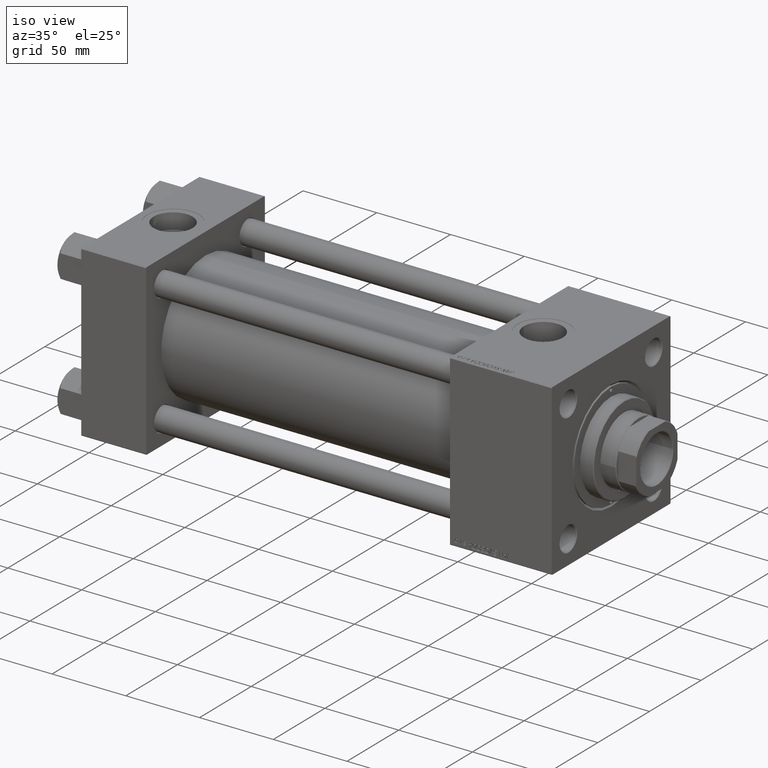
[diagram: clean part render]
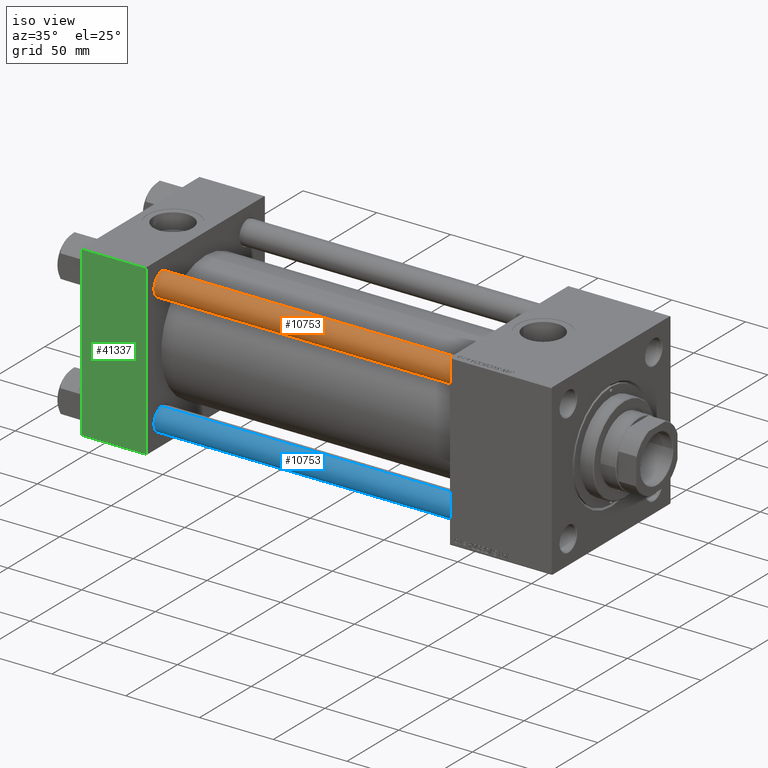
[diagram: same view with three faces highlighted in distinct colors, each labeled with its STEP entity id]
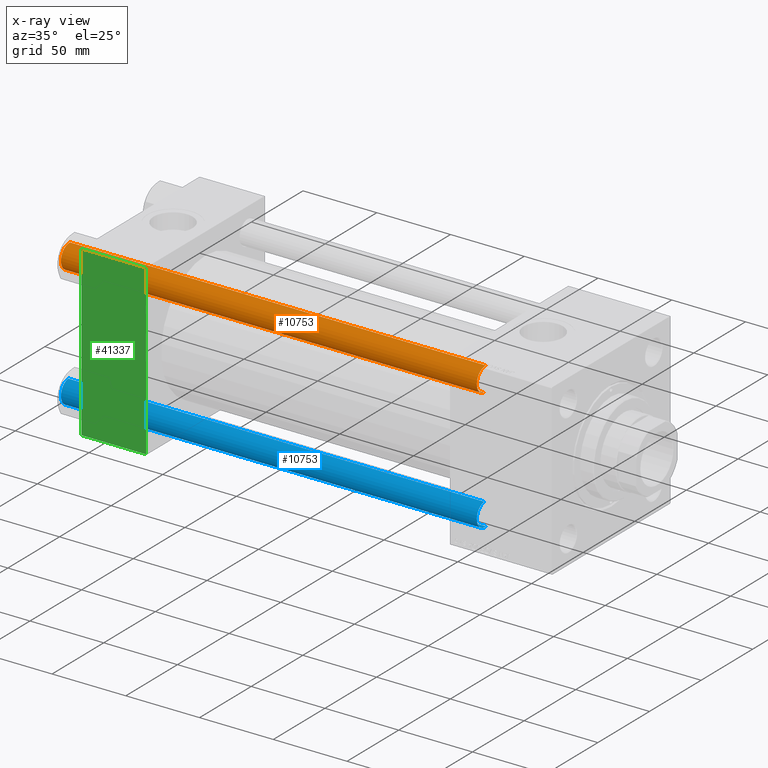
[diagram: x-ray of the same camera — body ghosted, the three highlighted faces saturated]
A machine part, iso view with three faces highlighted in distinct colors.
The next image is the same camera in x-ray (body ghosted, the three faces saturated) — at least one of them is partly hidden behind the body in this view.
Their STEP definitions:

[orange] entity #10753 — the highlighted cylindrical surface (edge-blend (fillet) strip) has radius 8 mm, axis along (1, 0, -0).
#564 = CARTESIAN_POINT ( 'NONE',  ( 8.000000000000000000, 9.797174393178825657E-16, 0.5000000000000004441 ) ) ;
#906 = LINE ( 'NONE', #26041, #34677 ) ;
#1818 = CARTESIAN_POINT ( 'NONE',  ( 0.000000000000000000, 0.000000000000000000, 0.5000000000000004441 ) ) ;
#4916 = CARTESIAN_POINT ( 'NONE',  ( -8.000000000000000000, 0.000000000000000000, 282.5000000000000000 ) ) ;
#5193 = DIRECTION ( 'NONE',  ( -0.000000000000000000, -0.000000000000000000, -1.000000000000000000 ) ) ;
#8418 = AXIS2_PLACEMENT_3D ( 'NONE', #21054, #8491, #41111 ) ;
#8491 = DIRECTION ( 'NONE',  ( 0.000000000000000000, 0.000000000000000000, -1.000000000000000000 ) ) ;
#10204 = DIRECTION ( 'NONE',  ( -0.000000000000000000, -0.000000000000000000, -1.000000000000000000 ) ) ;
#10720 = LINE ( 'NONE', #46843, #48256 ) ;
#10753 = ADVANCED_FACE ( 'NONE', ( #36509 ), #48542, .T. ) ;
#10819 = CIRCLE ( 'NONE', #47546, 8.000000000000000000 ) ;
#12164 = CARTESIAN_POINT ( 'NONE',  ( 0.000000000000000000, 0.000000000000000000, 283.0000000000000000 ) ) ;
#13083 = ORIENTED_EDGE ( 'NONE', *, *, #45338, .F. ) ;
#14414 = VERTEX_POINT ( 'NONE', #42845 ) ;
#15616 = DIRECTION ( 'NONE',  ( -0.000000000000000000, -0.000000000000000000, 1.000000000000000000 ) ) ;
#17550 = EDGE_CURVE ( 'NONE', #14414, #34293, #906, .T. ) ;
#21054 = CARTESIAN_POINT ( 'NONE',  ( 0.000000000000000000, 0.000000000000000000, 282.5000000000000000 ) ) ;
#25199 = ORIENTED_EDGE ( 'NONE', *, *, #51605, .T. ) ;
#25695 = ORIENTED_EDGE ( 'NONE', *, *, #26757, .T. ) ;
#26041 = CARTESIAN_POINT ( 'NONE',  ( 8.000000000000000000, 9.797174393178825657E-16, 283.0000000000000000 ) ) ;
#26757 = EDGE_CURVE ( 'NONE', #34015, #14414, #28031, .T. ) ;
#27175 = EDGE_LOOP ( 'NONE', ( #25695, #48696, #25199, #13083 ) ) ;
#28031 = CIRCLE ( 'NONE', #8418, 8.000000000000000000 ) ;
#28205 = DIRECTION ( 'NONE',  ( -1.000000000000000000, 0.000000000000000000, 0.000000000000000000 ) ) ;
#30644 = CARTESIAN_POINT ( 'NONE',  ( -8.000000000000000000, 0.000000000000000000, 0.5000000000000004441 ) ) ;
#34015 = VERTEX_POINT ( 'NONE', #4916 ) ;
#34293 = VERTEX_POINT ( 'NONE', #564 ) ;
#34677 = VECTOR ( 'NONE', #5193, 1000.000000000000000 ) ;
#36509 = FACE_OUTER_BOUND ( 'NONE', #27175, .T. ) ;
#41111 = DIRECTION ( 'NONE',  ( 1.000000000000000000, 0.000000000000000000, 0.000000000000000000 ) ) ;
#42246 = AXIS2_PLACEMENT_3D ( 'NONE', #12164, #52816, #28205 ) ;
#42845 = CARTESIAN_POINT ( 'NONE',  ( 8.000000000000000000, 9.797174393178825657E-16, 282.5000000000000000 ) ) ;
#45338 = EDGE_CURVE ( 'NONE', #34015, #52841, #10720, .T. ) ;
#46843 = CARTESIAN_POINT ( 'NONE',  ( -8.000000000000000000, 0.000000000000000000, 283.0000000000000000 ) ) ;
#47546 = AXIS2_PLACEMENT_3D ( 'NONE', #1818, #15616, #52514 ) ;
#48256 = VECTOR ( 'NONE', #10204, 1000.000000000000000 ) ;
#48542 = CYLINDRICAL_SURFACE ( 'NONE', #42246, 8.000000000000000000 ) ;
#48696 = ORIENTED_EDGE ( 'NONE', *, *, #17550, .T. ) ;
#51605 = EDGE_CURVE ( 'NONE', #34293, #52841, #10819, .T. ) ;
#52514 = DIRECTION ( 'NONE',  ( 1.000000000000000000, 0.000000000000000000, 0.000000000000000000 ) ) ;
#52816 = DIRECTION ( 'NONE',  ( -0.000000000000000000, -0.000000000000000000, -1.000000000000000000 ) ) ;
#52841 = VERTEX_POINT ( 'NONE', #30644 ) ;

[blue] entity #10753 — the highlighted cylindrical surface (edge-blend (fillet) strip) has radius 8 mm, axis along (-1, -0, -0).
#564 = CARTESIAN_POINT ( 'NONE',  ( 8.000000000000000000, 9.797174393178825657E-16, 0.5000000000000004441 ) ) ;
#906 = LINE ( 'NONE', #26041, #34677 ) ;
#1818 = CARTESIAN_POINT ( 'NONE',  ( 0.000000000000000000, 0.000000000000000000, 0.5000000000000004441 ) ) ;
#4916 = CARTESIAN_POINT ( 'NONE',  ( -8.000000000000000000, 0.000000000000000000, 282.5000000000000000 ) ) ;
#5193 = DIRECTION ( 'NONE',  ( -0.000000000000000000, -0.000000000000000000, -1.000000000000000000 ) ) ;
#8418 = AXIS2_PLACEMENT_3D ( 'NONE', #21054, #8491, #41111 ) ;
#8491 = DIRECTION ( 'NONE',  ( 0.000000000000000000, 0.000000000000000000, -1.000000000000000000 ) ) ;
#10204 = DIRECTION ( 'NONE',  ( -0.000000000000000000, -0.000000000000000000, -1.000000000000000000 ) ) ;
#10720 = LINE ( 'NONE', #46843, #48256 ) ;
#10753 = ADVANCED_FACE ( 'NONE', ( #36509 ), #48542, .T. ) ;
#10819 = CIRCLE ( 'NONE', #47546, 8.000000000000000000 ) ;
#12164 = CARTESIAN_POINT ( 'NONE',  ( 0.000000000000000000, 0.000000000000000000, 283.0000000000000000 ) ) ;
#13083 = ORIENTED_EDGE ( 'NONE', *, *, #45338, .F. ) ;
#14414 = VERTEX_POINT ( 'NONE', #42845 ) ;
#15616 = DIRECTION ( 'NONE',  ( -0.000000000000000000, -0.000000000000000000, 1.000000000000000000 ) ) ;
#17550 = EDGE_CURVE ( 'NONE', #14414, #34293, #906, .T. ) ;
#21054 = CARTESIAN_POINT ( 'NONE',  ( 0.000000000000000000, 0.000000000000000000, 282.5000000000000000 ) ) ;
#25199 = ORIENTED_EDGE ( 'NONE', *, *, #51605, .T. ) ;
#25695 = ORIENTED_EDGE ( 'NONE', *, *, #26757, .T. ) ;
#26041 = CARTESIAN_POINT ( 'NONE',  ( 8.000000000000000000, 9.797174393178825657E-16, 283.0000000000000000 ) ) ;
#26757 = EDGE_CURVE ( 'NONE', #34015, #14414, #28031, .T. ) ;
#27175 = EDGE_LOOP ( 'NONE', ( #25695, #48696, #25199, #13083 ) ) ;
#28031 = CIRCLE ( 'NONE', #8418, 8.000000000000000000 ) ;
#28205 = DIRECTION ( 'NONE',  ( -1.000000000000000000, 0.000000000000000000, 0.000000000000000000 ) ) ;
#30644 = CARTESIAN_POINT ( 'NONE',  ( -8.000000000000000000, 0.000000000000000000, 0.5000000000000004441 ) ) ;
#34015 = VERTEX_POINT ( 'NONE', #4916 ) ;
#34293 = VERTEX_POINT ( 'NONE', #564 ) ;
#34677 = VECTOR ( 'NONE', #5193, 1000.000000000000000 ) ;
#36509 = FACE_OUTER_BOUND ( 'NONE', #27175, .T. ) ;
#41111 = DIRECTION ( 'NONE',  ( 1.000000000000000000, 0.000000000000000000, 0.000000000000000000 ) ) ;
#42246 = AXIS2_PLACEMENT_3D ( 'NONE', #12164, #52816, #28205 ) ;
#42845 = CARTESIAN_POINT ( 'NONE',  ( 8.000000000000000000, 9.797174393178825657E-16, 282.5000000000000000 ) ) ;
#45338 = EDGE_CURVE ( 'NONE', #34015, #52841, #10720, .T. ) ;
#46843 = CARTESIAN_POINT ( 'NONE',  ( -8.000000000000000000, 0.000000000000000000, 283.0000000000000000 ) ) ;
#47546 = AXIS2_PLACEMENT_3D ( 'NONE', #1818, #15616, #52514 ) ;
#48256 = VECTOR ( 'NONE', #10204, 1000.000000000000000 ) ;
#48542 = CYLINDRICAL_SURFACE ( 'NONE', #42246, 8.000000000000000000 ) ;
#48696 = ORIENTED_EDGE ( 'NONE', *, *, #17550, .T. ) ;
#51605 = EDGE_CURVE ( 'NONE', #34293, #52841, #10819, .T. ) ;
#52514 = DIRECTION ( 'NONE',  ( 1.000000000000000000, 0.000000000000000000, 0.000000000000000000 ) ) ;
#52816 = DIRECTION ( 'NONE',  ( -0.000000000000000000, -0.000000000000000000, -1.000000000000000000 ) ) ;
#52841 = VERTEX_POINT ( 'NONE', #30644 ) ;

[green] entity #41337 — the highlighted planar face has unit normal (0, 1, 0).
#1961 = ORIENTED_EDGE ( 'NONE', *, *, #20192, .F. ) ;
#2152 = CARTESIAN_POINT ( 'NONE',  ( 44.00000000000000000, -57.50000000000000711, 57.00000000000000711 ) ) ;
#3645 = CARTESIAN_POINT ( 'NONE',  ( 0.000000000000000000, -57.50000000000000711, 57.00000000000000711 ) ) ;
#4051 = ORIENTED_EDGE ( 'NONE', *, *, #16011, .T. ) ;
#4218 = DIRECTION ( 'NONE',  ( -0.000000000000000000, 1.000000000000000000, 0.000000000000000000 ) ) ;
#4444 = DIRECTION ( 'NONE',  ( 0.000000000000000000, 0.000000000000000000, -1.000000000000000000 ) ) ;
#7175 = EDGE_LOOP ( 'NONE', ( #4051, #17440, #1961, #14081 ) ) ;
#7976 = DIRECTION ( 'NONE',  ( 0.000000000000000000, -0.000000000000000000, 1.000000000000000000 ) ) ;
#10949 = CARTESIAN_POINT ( 'NONE',  ( 44.00000000000000000, -57.50000000000000711, -57.00000000000000711 ) ) ;
#11691 = CARTESIAN_POINT ( 'NONE',  ( 0.000000000000000000, -57.50000000000000711, 57.49999999999999289 ) ) ;
#14081 = ORIENTED_EDGE ( 'NONE', *, *, #40341, .T. ) ;
#15490 = CARTESIAN_POINT ( 'NONE',  ( 0.000000000000000000, -57.50000000000000711, -57.00000000000000711 ) ) ;
#16011 = EDGE_CURVE ( 'NONE', #30500, #43956, #37357, .T. ) ;
#17440 = ORIENTED_EDGE ( 'NONE', *, *, #32258, .T. ) ;
#18470 = DIRECTION ( 'NONE',  ( -1.000000000000000000, 0.000000000000000000, 0.000000000000000000 ) ) ;
#20192 = EDGE_CURVE ( 'NONE', #37763, #48072, #23191, .T. ) ;
#22997 = LINE ( 'NONE', #2152, #36961 ) ;
#23191 = LINE ( 'NONE', #46766, #42498 ) ;
#24012 = CARTESIAN_POINT ( 'NONE',  ( 44.00000000000000000, -57.50000000000000711, 57.49999999999999289 ) ) ;
#24163 = AXIS2_PLACEMENT_3D ( 'NONE', #24012, #4218, #7976 ) ;
#26470 = LINE ( 'NONE', #10949, #46182 ) ;
#27500 = FACE_OUTER_BOUND ( 'NONE', #7175, .T. ) ;
#30350 = VECTOR ( 'NONE', #4444, 1000.000000000000000 ) ;
#30500 = VERTEX_POINT ( 'NONE', #3645 ) ;
#31530 = DIRECTION ( 'NONE',  ( 1.000000000000000000, 0.000000000000000000, 0.000000000000000000 ) ) ;
#32258 = EDGE_CURVE ( 'NONE', #43956, #48072, #26470, .T. ) ;
#36961 = VECTOR ( 'NONE', #18470, 1000.000000000000000 ) ;
#37357 = LINE ( 'NONE', #11691, #30350 ) ;
#37763 = VERTEX_POINT ( 'NONE', #44116 ) ;
#40341 = EDGE_CURVE ( 'NONE', #37763, #30500, #22997, .T. ) ;
#41337 = ADVANCED_FACE ( 'NONE', ( #27500 ), #41392, .F. ) ;
#41392 = PLANE ( 'NONE',  #24163 ) ;
#41784 = CARTESIAN_POINT ( 'NONE',  ( 44.00000000000000000, -57.50000000000000711, -57.00000000000000711 ) ) ;
#42498 = VECTOR ( 'NONE', #46498, 1000.000000000000000 ) ;
#43956 = VERTEX_POINT ( 'NONE', #15490 ) ;
#44116 = CARTESIAN_POINT ( 'NONE',  ( 44.00000000000000000, -57.50000000000000711, 57.00000000000000711 ) ) ;
#46182 = VECTOR ( 'NONE', #31530, 1000.000000000000000 ) ;
#46498 = DIRECTION ( 'NONE',  ( 0.000000000000000000, 0.000000000000000000, -1.000000000000000000 ) ) ;
#46766 = CARTESIAN_POINT ( 'NONE',  ( 44.00000000000000000, -57.50000000000000711, 57.49999999999999289 ) ) ;
#48072 = VERTEX_POINT ( 'NONE', #41784 ) ;